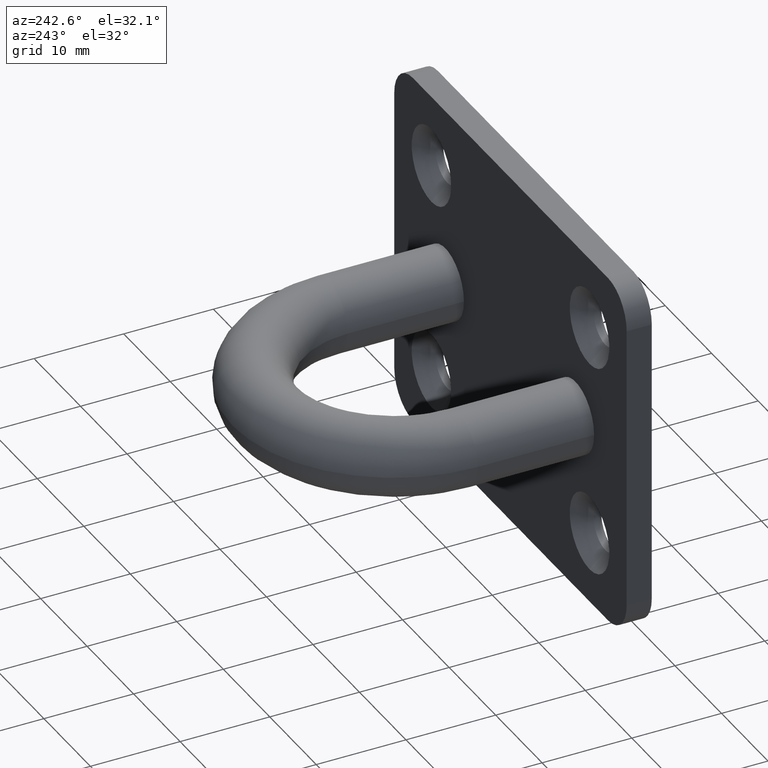
[diagram: clean part render]
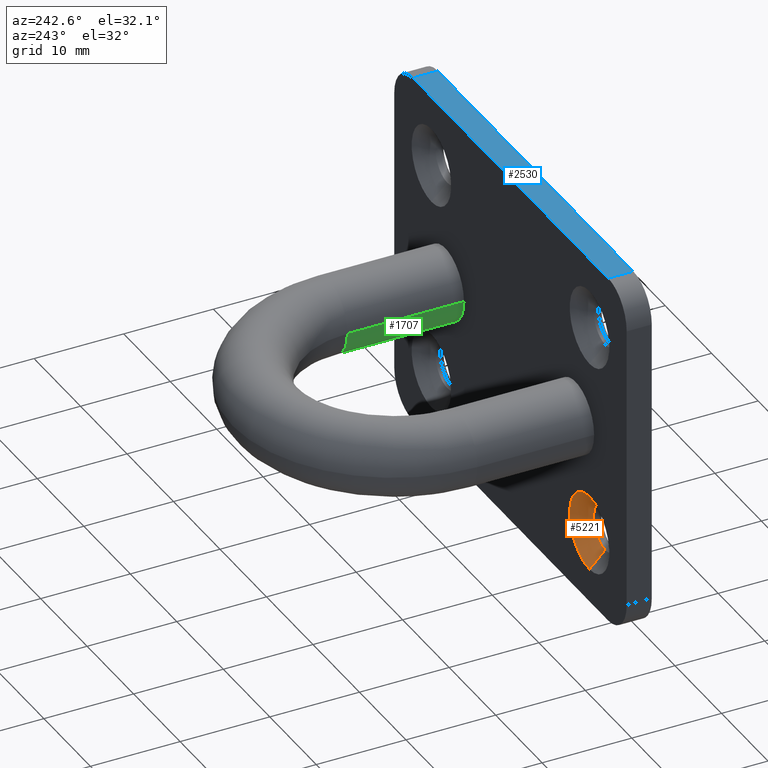
[diagram: same view with three faces highlighted in distinct colors, each labeled with its STEP entity id]
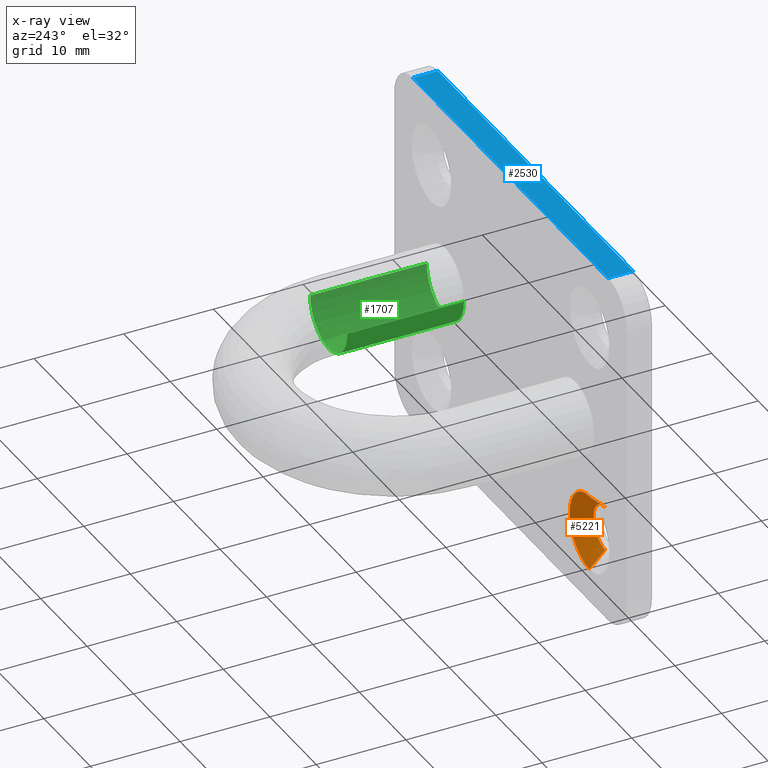
[diagram: x-ray of the same camera — body ghosted, the three highlighted faces saturated]
A machine part, auxiliary view with three faces highlighted in distinct colors.
The next image is the same camera in x-ray (body ghosted, the three faces saturated) — at least one of them is partly hidden behind the body in this view.
Their STEP definitions:

[orange] entity #5221 — the highlighted conical surface has half-angle 45 deg.
#214 = CARTESIAN_POINT ( 'NONE',  ( -17.00000000000000400, 1.050000000000001800, -9.500000000000000000 ) ) ;
#573 = VERTEX_POINT ( 'NONE', #3942 ) ;
#1456 = EDGE_CURVE ( 'NONE', #573, #11451, #4444, .T. ) ;
#1563 = FACE_OUTER_BOUND ( 'NONE', #5721, .T. ) ;
#2243 = DIRECTION ( 'NONE',  ( 0.0000000000000000000, -1.000000000000000000, 0.0000000000000000000 ) ) ;
#3341 = DIRECTION ( 'NONE',  ( 8.659560562354945200E-017, 0.7071067811865464600, -0.7071067811865486800 ) ) ;
#3841 = DIRECTION ( 'NONE',  ( 0.0000000000000000000, 0.7071067811865464600, 0.7071067811865486800 ) ) ;
#3942 = CARTESIAN_POINT ( 'NONE',  ( -17.00000000000000400, 1.050000000000001800, -9.500000000000000000 ) ) ;
#4444 = LINE ( 'NONE', #214, #9417 ) ;
#4521 = CARTESIAN_POINT ( 'NONE',  ( -17.00000000000000400, 1.050000000000001800, -14.50000000000000000 ) ) ;
#4729 = CIRCLE ( 'NONE', #12215, 4.250000000000003600 ) ;
#5221 = ADVANCED_FACE ( 'NONE', ( #1563 ), #7100, .F. ) ;
#5705 = DIRECTION ( 'NONE',  ( 0.0000000000000000000, 1.000000000000000000, 0.0000000000000000000 ) ) ;
#5721 = EDGE_LOOP ( 'NONE', ( #14539, #14054, #9729, #15303 ) ) ;
#6066 = AXIS2_PLACEMENT_3D ( 'NONE', #7756, #8957, #8586 ) ;
#7100 = CONICAL_SURFACE ( 'NONE', #8773, 2.500000000000000400, 0.7853981633974498300 ) ;
#7253 = CIRCLE ( 'NONE', #6066, 2.500000000000000400 ) ;
#7756 = CARTESIAN_POINT ( 'NONE',  ( -17.00000000000000400, 1.050000000000001800, -12.00000000000000000 ) ) ;
#8246 = EDGE_CURVE ( 'NONE', #12487, #11451, #4729, .T. ) ;
#8426 = VERTEX_POINT ( 'NONE', #11992 ) ;
#8586 = DIRECTION ( 'NONE',  ( 0.0000000000000000000, 0.0000000000000000000, -1.000000000000000000 ) ) ;
#8773 = AXIS2_PLACEMENT_3D ( 'NONE', #12826, #5705, #13937 ) ;
#8957 = DIRECTION ( 'NONE',  ( 0.0000000000000000000, 1.000000000000000000, 0.0000000000000000000 ) ) ;
#9139 = CARTESIAN_POINT ( 'NONE',  ( -17.00000000000000400, 2.800000000000000300, -16.25000000000000400 ) ) ;
#9417 = VECTOR ( 'NONE', #3841, 1000.000000000000000 ) ;
#9664 = VECTOR ( 'NONE', #3341, 1000.000000000000000 ) ;
#9729 = ORIENTED_EDGE ( 'NONE', *, *, #1456, .T. ) ;
#10486 = DIRECTION ( 'NONE',  ( 0.0000000000000000000, 0.0000000000000000000, -1.000000000000000000 ) ) ;
#11066 = EDGE_CURVE ( 'NONE', #8426, #12487, #12814, .T. ) ;
#11451 = VERTEX_POINT ( 'NONE', #14889 ) ;
#11992 = CARTESIAN_POINT ( 'NONE',  ( -17.00000000000000400, 1.050000000000001800, -14.50000000000000000 ) ) ;
#12215 = AXIS2_PLACEMENT_3D ( 'NONE', #12666, #2243, #10486 ) ;
#12487 = VERTEX_POINT ( 'NONE', #9139 ) ;
#12666 = CARTESIAN_POINT ( 'NONE',  ( -17.00000000000000400, 2.799999999999999800, -12.00000000000000000 ) ) ;
#12814 = LINE ( 'NONE', #4521, #9664 ) ;
#12826 = CARTESIAN_POINT ( 'NONE',  ( -17.00000000000000400, 1.050000000000001800, -12.00000000000000000 ) ) ;
#13937 = DIRECTION ( 'NONE',  ( 0.0000000000000000000, 0.0000000000000000000, 1.000000000000000000 ) ) ;
#14054 = ORIENTED_EDGE ( 'NONE', *, *, #14279, .F. ) ;
#14279 = EDGE_CURVE ( 'NONE', #573, #8426, #7253, .T. ) ;
#14539 = ORIENTED_EDGE ( 'NONE', *, *, #11066, .F. ) ;
#14889 = CARTESIAN_POINT ( 'NONE',  ( -17.00000000000000400, 2.800000000000000300, -7.749999999999996400 ) ) ;
#15303 = ORIENTED_EDGE ( 'NONE', *, *, #8246, .F. ) ;

[blue] entity #2530 — the highlighted planar face has unit normal (-0, 0, -1).
#541 = LINE ( 'NONE', #2689, #7008 ) ;
#810 = LINE ( 'NONE', #10815, #6719 ) ;
#1252 = DIRECTION ( 'NONE',  ( -1.000000000000000000, 0.0000000000000000000, 6.938893903907229600E-017 ) ) ;
#1498 = VECTOR ( 'NONE', #14079, 1000.000000000000000 ) ;
#1999 = DIRECTION ( 'NONE',  ( -0.0000000000000000000, 1.000000000000000000, -0.0000000000000000000 ) ) ;
#2047 = ORIENTED_EDGE ( 'NONE', *, *, #2576, .T. ) ;
#2530 = ADVANCED_FACE ( 'NONE', ( #4256 ), #9591, .F. ) ;
#2576 = EDGE_CURVE ( 'NONE', #14561, #5160, #541, .T. ) ;
#2689 = CARTESIAN_POINT ( 'NONE',  ( -21.00000000000000400, 2.799999999999999800, 20.00000000000000000 ) ) ;
#2984 = LINE ( 'NONE', #7911, #1498 ) ;
#3715 = DIRECTION ( 'NONE',  ( 1.000000000000000000, -0.0000000000000000000, -6.938893903907228400E-017 ) ) ;
#3831 = CARTESIAN_POINT ( 'NONE',  ( 25.00000000000000000, 2.799999999999999800, 19.99999999999999600 ) ) ;
#4256 = FACE_OUTER_BOUND ( 'NONE', #7676, .T. ) ;
#5160 = VERTEX_POINT ( 'NONE', #14899 ) ;
#5995 = DIRECTION ( 'NONE',  ( -6.938893903907229600E-017, 0.0000000000000000000, -1.000000000000000000 ) ) ;
#6182 = EDGE_CURVE ( 'NONE', #12007, #11618, #8373, .T. ) ;
#6710 = CARTESIAN_POINT ( 'NONE',  ( 21.00000000000000000, 2.799999999999999800, 19.99999999999999600 ) ) ;
#6719 = VECTOR ( 'NONE', #3715, 1000.000000000000000 ) ;
#7008 = VECTOR ( 'NONE', #12274, 1000.000000000000000 ) ;
#7073 = CARTESIAN_POINT ( 'NONE',  ( 21.00000000000000000, 2.799999999999999800, 19.99999999999999600 ) ) ;
#7676 = EDGE_LOOP ( 'NONE', ( #14876, #2047, #10248, #8083 ) ) ;
#7911 = CARTESIAN_POINT ( 'NONE',  ( 25.00000000000000000, 2.799999999999999800, 19.99999999999999600 ) ) ;
#8083 = ORIENTED_EDGE ( 'NONE', *, *, #6182, .T. ) ;
#8373 = LINE ( 'NONE', #6710, #13382 ) ;
#8768 = CARTESIAN_POINT ( 'NONE',  ( 21.00000000000000000, 0.0000000000000000000, 19.99999999999999600 ) ) ;
#9164 = AXIS2_PLACEMENT_3D ( 'NONE', #3831, #5995, #1252 ) ;
#9336 = CARTESIAN_POINT ( 'NONE',  ( -21.00000000000000400, 2.799999999999999800, 20.00000000000000000 ) ) ;
#9591 = PLANE ( 'NONE',  #9164 ) ;
#10248 = ORIENTED_EDGE ( 'NONE', *, *, #11156, .T. ) ;
#10815 = CARTESIAN_POINT ( 'NONE',  ( 25.00000000000000000, 0.0000000000000000000, 19.99999999999999600 ) ) ;
#11156 = EDGE_CURVE ( 'NONE', #5160, #12007, #810, .T. ) ;
#11618 = VERTEX_POINT ( 'NONE', #7073 ) ;
#12007 = VERTEX_POINT ( 'NONE', #8768 ) ;
#12066 = EDGE_CURVE ( 'NONE', #14561, #11618, #2984, .T. ) ;
#12274 = DIRECTION ( 'NONE',  ( 0.0000000000000000000, -1.000000000000000000, 0.0000000000000000000 ) ) ;
#13382 = VECTOR ( 'NONE', #1999, 1000.000000000000000 ) ;
#14079 = DIRECTION ( 'NONE',  ( 1.000000000000000000, -0.0000000000000000000, -6.938893903907228400E-017 ) ) ;
#14561 = VERTEX_POINT ( 'NONE', #9336 ) ;
#14876 = ORIENTED_EDGE ( 'NONE', *, *, #12066, .F. ) ;
#14899 = CARTESIAN_POINT ( 'NONE',  ( -21.00000000000000400, 0.0000000000000000000, 20.00000000000000000 ) ) ;

[green] entity #1707 — the highlighted cylindrical surface (partial cylindrical patch) has radius 4 mm, axis along (-0, -1, 0).
#207 = DIRECTION ( 'NONE',  ( -1.097926250618232300E-016, -1.000000000000000000, 0.0000000000000000000 ) ) ;
#476 = EDGE_CURVE ( 'NONE', #7913, #10706, #6023, .T. ) ;
#904 = ORIENTED_EDGE ( 'NONE', *, *, #12592, .T. ) ;
#1038 = EDGE_CURVE ( 'NONE', #3664, #9732, #13790, .T. ) ;
#1082 = CARTESIAN_POINT ( 'NONE',  ( 14.00000000000000200, 15.80000000000000100, 0.0000000000000000000 ) ) ;
#1259 = DIRECTION ( 'NONE',  ( 0.0000000000000000000, 0.0000000000000000000, -1.000000000000000000 ) ) ;
#1707 = ADVANCED_FACE ( 'NONE', ( #6297 ), #5183, .T. ) ;
#2638 = CARTESIAN_POINT ( 'NONE',  ( 10.00000000000000200, 15.80000000000000100, 4.898587196589413800E-016 ) ) ;
#3254 = DIRECTION ( 'NONE',  ( 1.000000000000000000, 0.0000000000000000000, 0.0000000000000000000 ) ) ;
#3664 = VERTEX_POINT ( 'NONE', #13075 ) ;
#3834 = CARTESIAN_POINT ( 'NONE',  ( 18.00000000000000400, 15.80000000000000100, 0.0000000000000000000 ) ) ;
#4011 = EDGE_CURVE ( 'NONE', #7913, #3664, #7306, .T. ) ;
#4028 = DIRECTION ( 'NONE',  ( 0.0000000000000000000, 0.0000000000000000000, -1.000000000000000000 ) ) ;
#4578 = DIRECTION ( 'NONE',  ( -1.097926250618232300E-016, -1.000000000000000000, 0.0000000000000000000 ) ) ;
#4595 = CARTESIAN_POINT ( 'NONE',  ( 14.00000000000000200, 15.80000000000000100, 0.0000000000000000000 ) ) ;
#5183 = CYLINDRICAL_SURFACE ( 'NONE', #10683, 4.000000000000000000 ) ;
#5357 = CARTESIAN_POINT ( 'NONE',  ( 14.00000000000000000, 2.800000000000000300, 0.0000000000000000000 ) ) ;
#5471 = VECTOR ( 'NONE', #207, 1000.000000000000000 ) ;
#5501 = DIRECTION ( 'NONE',  ( -1.097926250618232300E-016, -1.000000000000000000, 0.0000000000000000000 ) ) ;
#5525 = CARTESIAN_POINT ( 'NONE',  ( 18.00000000000000400, 15.80000000000000100, 0.0000000000000000000 ) ) ;
#6023 = LINE ( 'NONE', #3834, #5471 ) ;
#6297 = FACE_OUTER_BOUND ( 'NONE', #15052, .T. ) ;
#7027 = CIRCLE ( 'NONE', #10090, 4.000000000000000900 ) ;
#7306 = CIRCLE ( 'NONE', #7873, 4.000000000000000900 ) ;
#7494 = VECTOR ( 'NONE', #5501, 1000.000000000000000 ) ;
#7792 = CARTESIAN_POINT ( 'NONE',  ( 9.999999999999998200, 2.800000000000000300, 4.898587196589414800E-016 ) ) ;
#7873 = AXIS2_PLACEMENT_3D ( 'NONE', #4595, #8048, #1259 ) ;
#7913 = VERTEX_POINT ( 'NONE', #5525 ) ;
#8048 = DIRECTION ( 'NONE',  ( -1.224646799147353200E-016, 1.000000000000000000, 0.0000000000000000000 ) ) ;
#8289 = ORIENTED_EDGE ( 'NONE', *, *, #1038, .F. ) ;
#9494 = CARTESIAN_POINT ( 'NONE',  ( 18.00000000000000400, 2.800000000000000300, 0.0000000000000000000 ) ) ;
#9732 = VERTEX_POINT ( 'NONE', #7792 ) ;
#10090 = AXIS2_PLACEMENT_3D ( 'NONE', #5357, #13476, #4028 ) ;
#10683 = AXIS2_PLACEMENT_3D ( 'NONE', #1082, #4578, #3254 ) ;
#10706 = VERTEX_POINT ( 'NONE', #9494 ) ;
#12378 = ORIENTED_EDGE ( 'NONE', *, *, #4011, .F. ) ;
#12592 = EDGE_CURVE ( 'NONE', #10706, #9732, #7027, .T. ) ;
#13075 = CARTESIAN_POINT ( 'NONE',  ( 10.00000000000000200, 15.80000000000000100, 4.898587196589414800E-016 ) ) ;
#13476 = DIRECTION ( 'NONE',  ( -0.0000000000000000000, 1.000000000000000000, -0.0000000000000000000 ) ) ;
#13641 = ORIENTED_EDGE ( 'NONE', *, *, #476, .T. ) ;
#13790 = LINE ( 'NONE', #2638, #7494 ) ;
#15052 = EDGE_LOOP ( 'NONE', ( #8289, #12378, #13641, #904 ) ) ;